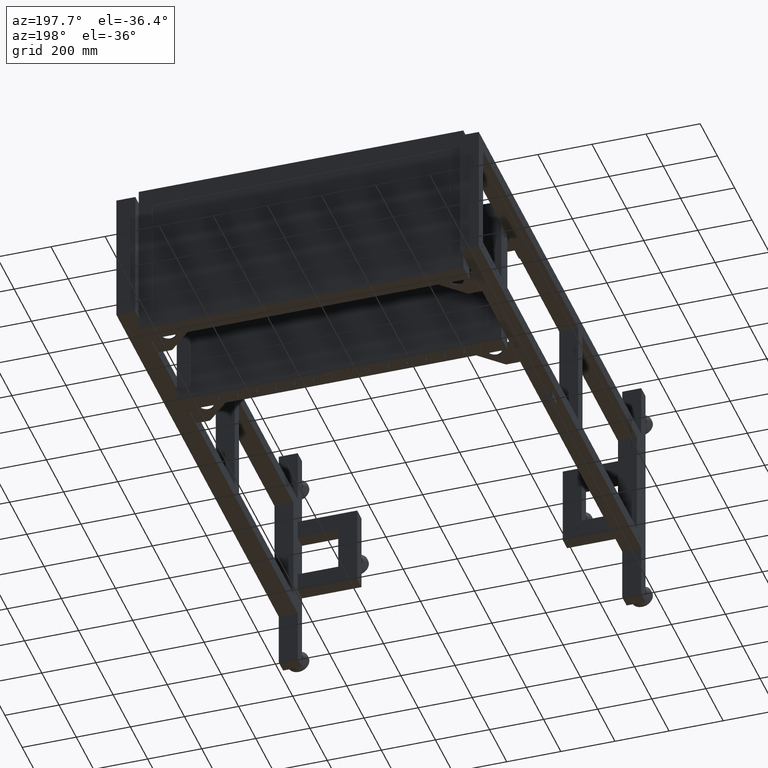
[diagram: clean part render]
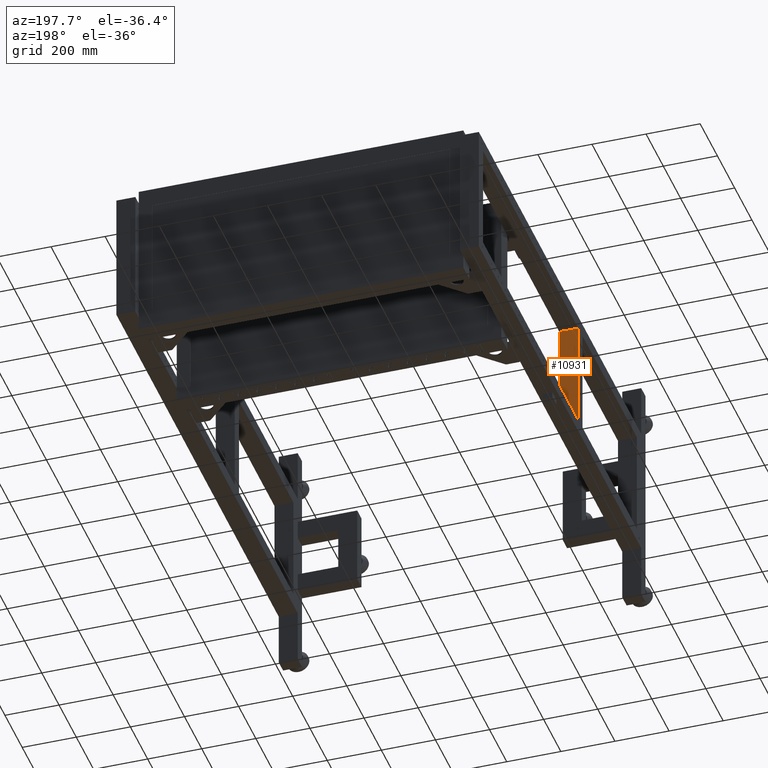
[diagram: same view with one face highlighted and labeled with its STEP entity id]
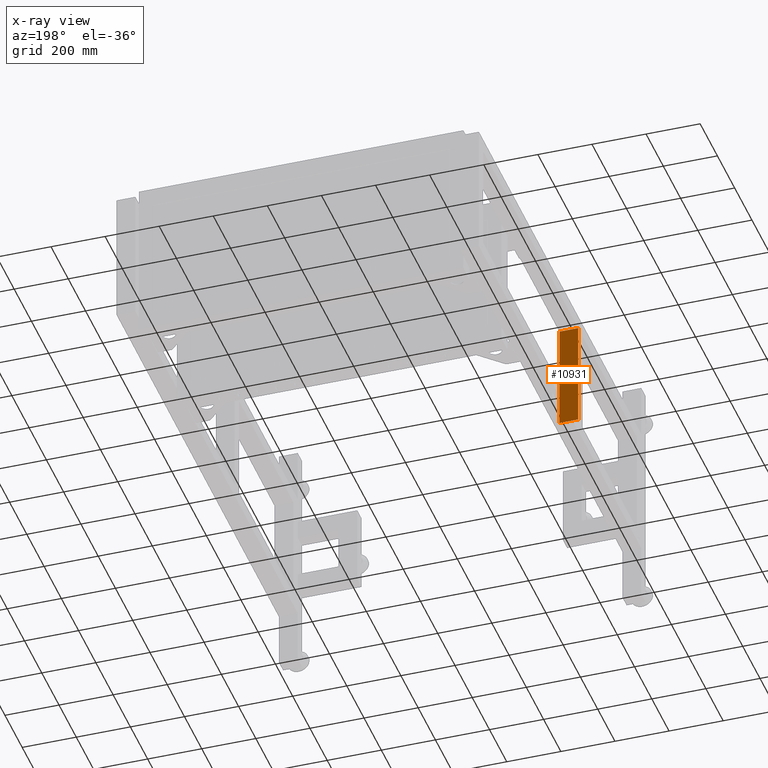
[diagram: x-ray of the same camera — body ghosted, the highlighted face saturated]
A machine part, auxiliary view. The second image highlights one B-rep face of the part: STEP entity #10931.
The next image is the same camera in x-ray: the body ghosted, the highlighted face saturated — about 0% of this face is hidden behind the body in this view.
In plain terms, the highlighted planar face has unit normal (0, -1, 0).
Its self-contained STEP definition (entity closure, byte-faithful):
#3113 = EDGE_CURVE ( 'NONE', #29240, #34868, #39015, .T. ) ;
#3830 = CARTESIAN_POINT ( 'NONE',  ( -1338.172487437185055, -114.5589195979879662, 200.0000000000000000 ) ) ;
#8074 = VECTOR ( 'NONE', #75957, 1000.000000000000000 ) ;
#10931 = ADVANCED_FACE ( 'NONE', ( #68190 ), #12917, .F. ) ;
#12917 = PLANE ( 'NONE',  #39767 ) ;
#24658 = LINE ( 'NONE', #42140, #69356 ) ;
#25212 = ORIENTED_EDGE ( 'NONE', *, *, #46204, .F. ) ;
#26567 = CARTESIAN_POINT ( 'NONE',  ( -1268.172487437184827, -114.5589195979879662, 200.0000000000000000 ) ) ;
#29240 = VERTEX_POINT ( 'NONE', #63319 ) ;
#34868 = VERTEX_POINT ( 'NONE', #44294 ) ;
#38104 = DIRECTION ( 'NONE',  ( 0.000000000000000000, 0.000000000000000000, -1.000000000000000000 ) ) ;
#39015 = LINE ( 'NONE', #51179, #8074 ) ;
#39767 = AXIS2_PLACEMENT_3D ( 'NONE', #79573, #68609, #38104 ) ;
#40335 = CARTESIAN_POINT ( 'NONE',  ( -1338.172487437185055, -114.5589195979879662, 200.0000000000000000 ) ) ;
#41739 = EDGE_LOOP ( 'NONE', ( #70799, #25212, #63415, #70990 ) ) ;
#42140 = CARTESIAN_POINT ( 'NONE',  ( -1338.172487437185055, -114.5589195979879662, 200.0000000000000000 ) ) ;
#44294 = CARTESIAN_POINT ( 'NONE',  ( -1338.172487437185055, -114.5589195979879662, -200.0000000000000000 ) ) ;
#44502 = EDGE_CURVE ( 'NONE', #59731, #64379, #24658, .T. ) ;
#46204 = EDGE_CURVE ( 'NONE', #64379, #34868, #59813, .T. ) ;
#49740 = LINE ( 'NONE', #57031, #65888 ) ;
#50535 = DIRECTION ( 'NONE',  ( 0.000000000000000000, 0.000000000000000000, -1.000000000000000000 ) ) ;
#51179 = CARTESIAN_POINT ( 'NONE',  ( -1338.172487437185055, -114.5589195979879662, -200.0000000000000000 ) ) ;
#53764 = VECTOR ( 'NONE', #54097, 1000.000000000000000 ) ;
#54097 = DIRECTION ( 'NONE',  ( 0.000000000000000000, 0.000000000000000000, -1.000000000000000000 ) ) ;
#57031 = CARTESIAN_POINT ( 'NONE',  ( -1268.172487437184827, -114.5589195979879662, 200.0000000000000000 ) ) ;
#59731 = VERTEX_POINT ( 'NONE', #26567 ) ;
#59813 = LINE ( 'NONE', #40335, #53764 ) ;
#60409 = DIRECTION ( 'NONE',  ( -1.000000000000000000, 0.000000000000000000, 0.000000000000000000 ) ) ;
#63319 = CARTESIAN_POINT ( 'NONE',  ( -1268.172487437184827, -114.5589195979879662, -200.0000000000000000 ) ) ;
#63415 = ORIENTED_EDGE ( 'NONE', *, *, #44502, .F. ) ;
#64379 = VERTEX_POINT ( 'NONE', #3830 ) ;
#65793 = EDGE_CURVE ( 'NONE', #59731, #29240, #49740, .T. ) ;
#65888 = VECTOR ( 'NONE', #50535, 1000.000000000000000 ) ;
#68190 = FACE_OUTER_BOUND ( 'NONE', #41739, .T. ) ;
#68609 = DIRECTION ( 'NONE',  ( 0.000000000000000000, -1.000000000000000000, 0.000000000000000000 ) ) ;
#69356 = VECTOR ( 'NONE', #60409, 1000.000000000000000 ) ;
#70799 = ORIENTED_EDGE ( 'NONE', *, *, #3113, .T. ) ;
#70990 = ORIENTED_EDGE ( 'NONE', *, *, #65793, .T. ) ;
#75957 = DIRECTION ( 'NONE',  ( -1.000000000000000000, 0.000000000000000000, 0.000000000000000000 ) ) ;
#79573 = CARTESIAN_POINT ( 'NONE',  ( -1338.172487437185055, -114.5589195979879662, 200.0000000000000000 ) ) ;